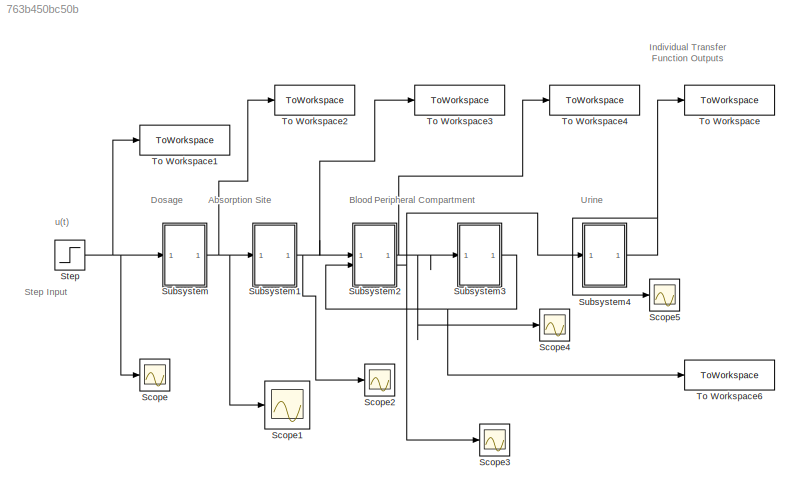
MODEL slx_763b450bc50b
KIND model
CONFIG AbsTol = auto
CONFIG EnableMultiTasking = off
CONFIG FixedStep = auto
CONFIG MaxStep = auto
CONFIG MinStep = auto
CONFIG RelTol = 1e-3
CONFIG SampleTimeConstraint = Unconstrained
CONFIG SolverName = VariableStepAuto
CONFIG StartTime = 0.0
CONFIG StopTime = 10.0
BLOCK [Scope] Scope
  Floating = off
  NumInputPorts = 1
  ScopeSpecificationString = Simulink.scopes.TimeScopeBlockCfg('CurrentConfiguration', extmgr.ConfigurationSet(extmgr.Configuration('Core','General UI',true),extmgr.Configuration('Core','Source UI',true),extmgr.Configuration('Sources','WiredSimulink',true,'DataLoggingVariableName','ScopeData1'),extmgr.Configuration('Visuals','Time Domain',true,'SerializedDisplays',{struct('MinYLimReal','-0.125','MaxYLimReal','1.125','YLabelRe...<+1380ch>
BLOCK [Scope] Scope1
  Floating = off
  NumInputPorts = 1
  ScopeSpecificationString = Simulink.scopes.TimeScopeBlockCfg('CurrentConfiguration', extmgr.ConfigurationSet(extmgr.Configuration('Core','General UI',true),extmgr.Configuration('Core','Source UI',true),extmgr.Configuration('Sources','WiredSimulink',true,'DataLoggingVariableName','ScopeData2'),extmgr.Configuration('Visuals','Time Domain',true,'SerializedDisplays',{struct('MinYLimReal','-0.12498','MaxYLimReal','1.12486','YLab...<+1397ch>
BLOCK [Scope] Scope2
  Floating = off
  NumInputPorts = 1
  ScopeSpecificationString = Simulink.scopes.TimeScopeBlockCfg('CurrentConfiguration', extmgr.ConfigurationSet(extmgr.Configuration('Core','General UI',true),extmgr.Configuration('Core','Source UI',true),extmgr.Configuration('Sources','WiredSimulink',true,'DataLoggingVariableName','ScopeData3'),extmgr.Configuration('Visuals','Time Domain',true,'SerializedDisplays',{struct('MinYLimReal','-0.12485','MaxYLimReal','1.12361','YLab...<+1397ch>
BLOCK [Scope] Scope3
  Floating = off
  NumInputPorts = 1
  ScopeSpecificationString = Simulink.scopes.TimeScopeBlockCfg('CurrentConfiguration', extmgr.ConfigurationSet(extmgr.Configuration('Core','General UI',true),extmgr.Configuration('Core','Source UI',true),extmgr.Configuration('Sources','WiredSimulink',true,'DataLoggingVariableName','ScopeData4'),extmgr.Configuration('Visuals','Time Domain',true,'SerializedDisplays',{struct('MinYLimReal','-0.46877','MaxYLimReal','4.21889','YLab...<+1399ch>
BLOCK [Scope] Scope4
  Floating = off
  NumInputPorts = 1
  ScopeSpecificationString = Simulink.scopes.TimeScopeBlockCfg('CurrentConfiguration', extmgr.ConfigurationSet(extmgr.Configuration('Core','General UI',true),extmgr.Configuration('Core','Source UI',true),extmgr.Configuration('Sources','WiredSimulink',true,'DataLoggingVariableName','ScopeData5'),extmgr.Configuration('Visuals','Time Domain',true,'SerializedDisplays',{struct('MinYLimReal','-0.46877','MaxYLimReal','4.21889','YLab...<+1399ch>
BLOCK [Scope] Scope5
  Floating = off
  NumInputPorts = 1
  ScopeSpecificationString = Simulink.scopes.TimeScopeBlockCfg('CurrentConfiguration', extmgr.ConfigurationSet(extmgr.Configuration('Core','General UI',true),extmgr.Configuration('Core','Source UI',true),extmgr.Configuration('Sources','WiredSimulink',true,'DataLoggingVariableName','ScopeData6'),extmgr.Configuration('Visuals','Time Domain',true,'SerializedDisplays',{struct('MinYLimReal','-0.4064','MaxYLimReal','3.65764','YLabe...<+1367ch>
BLOCK [Step] Step
  SampleTime = 0
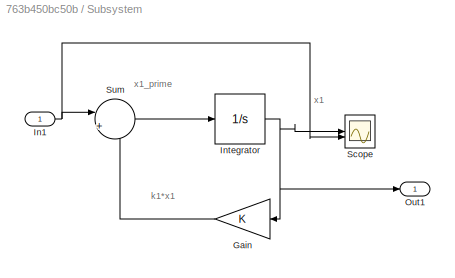
BLOCK [SubSystem] Subsystem
BLOCK [Gain] Subsystem/Gain
BLOCK [Inport] Subsystem/In1
BLOCK [Integrator] Subsystem/Integrator
BLOCK [Outport] Subsystem/Out1
BLOCK [Scope] Subsystem/Scope
  Floating = off
  NumInputPorts = 2
  ScopeSpecificationString = Simulink.scopes.TimeScopeBlockCfg('CurrentConfiguration', extmgr.ConfigurationSet(extmgr.Configuration('Core','General UI',true),extmgr.Configuration('Core','Source UI',true),extmgr.Configuration('Sources','WiredSimulink',true),extmgr.Configuration('Visuals','Time Domain',true),extmgr.Configuration('Tools','Plot Navigation',true),extmgr.Configuration('Tools','Measurements',true)),'Version','2022b'...<+1ch>  <repeated x4 — deduplicated; at blocks: Scope>
BLOCK [Sum] Subsystem/Sum
  Inputs = |+-
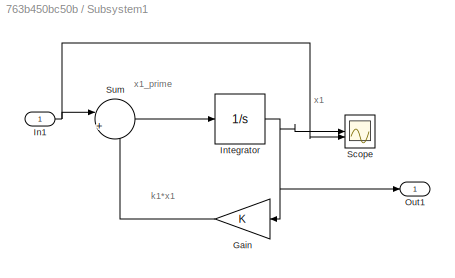
BLOCK [SubSystem] Subsystem1
BLOCK [Gain] Subsystem1/Gain
BLOCK [Inport] Subsystem1/In1
BLOCK [Integrator] Subsystem1/Integrator
BLOCK [Outport] Subsystem1/Out1
BLOCK [Scope] Subsystem1/Scope
  Floating = off
  NumInputPorts = 2
BLOCK [Sum] Subsystem1/Sum
  Inputs = |+-
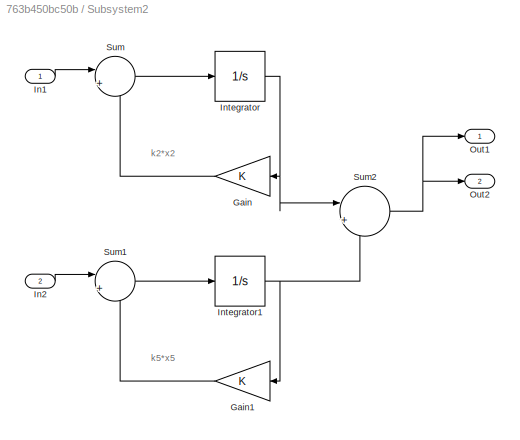
BLOCK [SubSystem] Subsystem2
BLOCK [Gain] Subsystem2/Gain
BLOCK [Gain] Subsystem2/Gain1
BLOCK [Inport] Subsystem2/In1
BLOCK [Inport] Subsystem2/In2
  Port = 2
BLOCK [Integrator] Subsystem2/Integrator
BLOCK [Integrator] Subsystem2/Integrator1
BLOCK [Outport] Subsystem2/Out1
BLOCK [Outport] Subsystem2/Out2
  Port = 2
BLOCK [Sum] Subsystem2/Sum
  Inputs = |+-
BLOCK [Sum] Subsystem2/Sum1
  Inputs = |+-
BLOCK [Sum] Subsystem2/Sum2
  Inputs = |++
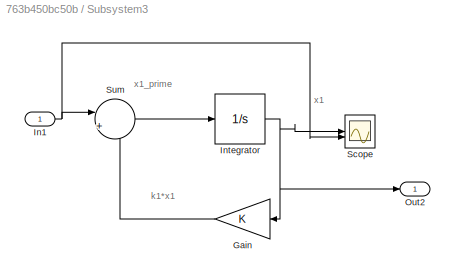
BLOCK [SubSystem] Subsystem3
BLOCK [Gain] Subsystem3/Gain
BLOCK [Inport] Subsystem3/In1
BLOCK [Integrator] Subsystem3/Integrator
BLOCK [Outport] Subsystem3/Out2
BLOCK [Scope] Subsystem3/Scope
  Floating = off
  NumInputPorts = 2
BLOCK [Sum] Subsystem3/Sum
  Inputs = |+-
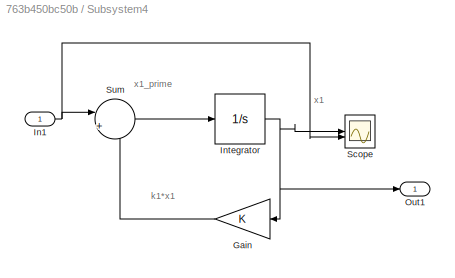
BLOCK [SubSystem] Subsystem4
BLOCK [Gain] Subsystem4/Gain
BLOCK [Inport] Subsystem4/In1
BLOCK [Integrator] Subsystem4/Integrator
BLOCK [Outport] Subsystem4/Out1
BLOCK [Scope] Subsystem4/Scope
  Floating = off
  NumInputPorts = 2
BLOCK [Sum] Subsystem4/Sum
  Inputs = |+-
BLOCK [ToWorkspace] To Workspace
  FixptAsFi = on
  MaxDataPoints = inf
  SampleTime = -1
  SaveFormat = Timeseries
  VariableName = y4
BLOCK [ToWorkspace] To Workspace1
  FixptAsFi = on
  MaxDataPoints = inf
  SampleTime = -1
  SaveFormat = Timeseries
  VariableName = u
BLOCK [ToWorkspace] To Workspace2
  FixptAsFi = on
  MaxDataPoints = inf
  SampleTime = -1
  SaveFormat = Timeseries
  VariableName = y1
BLOCK [ToWorkspace] To Workspace3
  FixptAsFi = on
  MaxDataPoints = inf
  SampleTime = -1
  SaveFormat = Timeseries
  VariableName = y2
BLOCK [ToWorkspace] To Workspace4
  FixptAsFi = on
  MaxDataPoints = inf
  SampleTime = -1
  SaveFormat = Timeseries
  VariableName = y3
BLOCK [ToWorkspace] To Workspace6
  FixptAsFi = on
  MaxDataPoints = inf
  SampleTime = -1
  SaveFormat = Timeseries
  VariableName = y5
ANNOTATION (root): Individual Transfer Function Outputs
ANNOTATION (root): Absorption Site
ANNOTATION (root): Blood
ANNOTATION (root): Dosage
ANNOTATION (root): Peripheral Compartment
ANNOTATION (root): Step Input
ANNOTATION (root): Urine
ANNOTATION (root): u(t)
ANNOTATION Subsystem: k1*x1
ANNOTATION Subsystem: x1
ANNOTATION Subsystem: x1_prime
ANNOTATION Subsystem1: k1*x1
ANNOTATION Subsystem1: x1
ANNOTATION Subsystem1: x1_prime
ANNOTATION Subsystem2: k2*x2
ANNOTATION Subsystem2: k5*x5
ANNOTATION Subsystem3: k1*x1
ANNOTATION Subsystem3: x1
ANNOTATION Subsystem3: x1_prime
ANNOTATION Subsystem4: k1*x1
ANNOTATION Subsystem4: x1
ANNOTATION Subsystem4: x1_prime
NET Step:1 -> Scope:1, Subsystem:1, To Workspace1:1
LINE Subsystem/Gain:1 -> Subsystem/Sum:2
NET Subsystem/In1:1 -> Subsystem/Scope:2, Subsystem/Sum:1
NET Subsystem/Integrator:1 -> Subsystem/Gain:1, Subsystem/Out1:1, Subsystem/Scope:1
LINE Subsystem/Sum:1 -> Subsystem/Integrator:1
LINE Subsystem1/Gain:1 -> Subsystem1/Sum:2
NET Subsystem1/In1:1 -> Subsystem1/Scope:2, Subsystem1/Sum:1
NET Subsystem1/Integrator:1 -> Subsystem1/Gain:1, Subsystem1/Out1:1, Subsystem1/Scope:1
LINE Subsystem1/Sum:1 -> Subsystem1/Integrator:1
NET Subsystem1:1 -> Scope2:1, Subsystem2:1, To Workspace3:1
LINE Subsystem2/Gain1:1 -> Subsystem2/Sum1:2
LINE Subsystem2/Gain:1 -> Subsystem2/Sum:2
LINE Subsystem2/In1:1 -> Subsystem2/Sum:1
LINE Subsystem2/In2:1 -> Subsystem2/Sum1:1
NET Subsystem2/Integrator1:1 -> Subsystem2/Gain1:1, Subsystem2/Sum2:2
NET Subsystem2/Integrator:1 -> Subsystem2/Gain:1, Subsystem2/Sum2:1
LINE Subsystem2/Sum1:1 -> Subsystem2/Integrator1:1
NET Subsystem2/Sum2:1 -> Subsystem2/Out1:1, Subsystem2/Out2:1
LINE Subsystem2/Sum:1 -> Subsystem2/Integrator:1
NET Subsystem2:1 -> Scope4:1, Subsystem3:1, To Workspace4:1
NET Subsystem2:2 -> Scope3:1, Subsystem4:1
LINE Subsystem3/Gain:1 -> Subsystem3/Sum:2
NET Subsystem3/In1:1 -> Subsystem3/Scope:2, Subsystem3/Sum:1
NET Subsystem3/Integrator:1 -> Subsystem3/Gain:1, Subsystem3/Out2:1, Subsystem3/Scope:1
LINE Subsystem3/Sum:1 -> Subsystem3/Integrator:1
NET Subsystem3:1 -> Subsystem2:2, To Workspace6:1
LINE Subsystem4/Gain:1 -> Subsystem4/Sum:2
NET Subsystem4/In1:1 -> Subsystem4/Scope:2, Subsystem4/Sum:1
NET Subsystem4/Integrator:1 -> Subsystem4/Gain:1, Subsystem4/Out1:1, Subsystem4/Scope:1
LINE Subsystem4/Sum:1 -> Subsystem4/Integrator:1
NET Subsystem4:1 -> Scope5:1, To Workspace:1
NET Subsystem:1 -> Scope1:1, Subsystem1:1, To Workspace2:1
note: NET lines group one-source signal fan-out (src -> all destinations, sorted); 1:1 wires keep LINE
